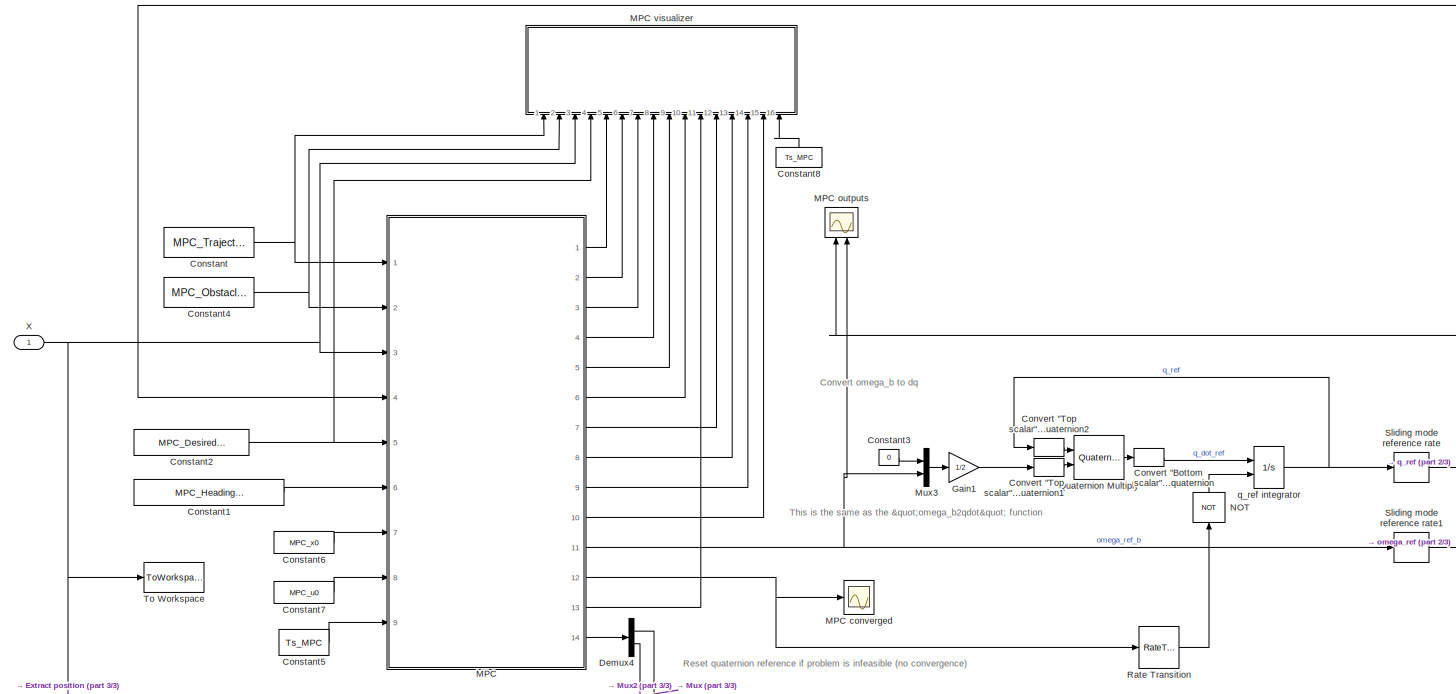
[diagram: root canvas - part 1/3, most of the canvas]
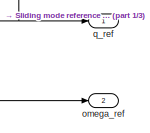
[diagram: root canvas - part 2/3, middle right region]
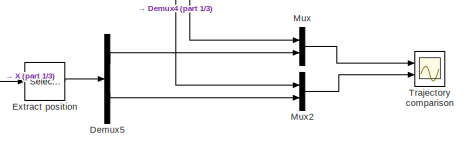
[diagram: root canvas - part 3/3, bottom center region]
MODEL slx_0b581701e710
KIND model
CONFIG AbsTol = auto
CONFIG EnableMultiTasking = off
CONFIG FixedStep = auto
CONFIG InitFcn = Parameters_Controllers % for controller sample rate\nParameters_Simulation\nConstants_Kugle\nConstants_nominal\nParameters_MPC;\n\nclose all; % close opened plots to prepare for automatic plots for MPC visualization\n\nPrepareMPCtrajectory;
CONFIG MaxStep = auto
CONFIG MinStep = auto
CONFIG PreLoadFcn = modelDir = fileparts(get_param(bdroot, 'FileName'));\naddpath(modelDir);\naddpath(fullfile(modelDir,'../../Parameters'));\naddpath(fullfile(modelDir,'../../Controllers/MPC'));\naddpath(fullfile(modelDir,'../../Controllers/MPC/functions'));\naddpath(fullfile(modelDir,'../../Controllers/MPC/functions/polynomial'));\naddpath(fullfile(modelDir,'../../Controllers/MPC/functions/trajectory'));\naddpath(fullfile...<+313ch>
CONFIG RelTol = 1e-3
CONFIG SampleTimeConstraint = Unconstrained
CONFIG Solver = VariableStepAuto
CONFIG SolverName = VariableStepAuto
CONFIG StartTime = 0.0
CONFIG StopTime = 10
BLOCK [Constant] Constant
  SampleTime = -1
  Value = MPC_Trajectory
BLOCK [Constant] Constant1
  SampleTime = -1
  Value = MPC_HeadingAngularVelocity
BLOCK [Constant] Constant2
  SampleTime = -1
  Value = MPC_DesiredVelocity
BLOCK [Constant] Constant3
  Value = 0
BLOCK [Constant] Constant4
  SampleTime = -1
  Value = MPC_Obstacles
BLOCK [Constant] Constant5
  SampleTime = -1
  Value = Ts_MPC
BLOCK [Constant] Constant6
  SampleTime = -1
  Value = MPC_x0
BLOCK [Constant] Constant7
  SampleTime = -1
  Value = MPC_u0
BLOCK [Constant] Constant8
  SampleTime = Ts_MPC
  Value = Ts_MPC
BLOCK [Selector] Convert "Bottom scalar" quaternion to "Top scalar" quaternion
  IndexOptions = Index vector (dialog)
  Indices = [4 1 2 3]
  InputPortWidth = 4
  OutputSizes = 1
  Ports = [1, 1]
BLOCK [Selector] Convert "Top scalar" quaternion to "Bottom scalar" quaternion1
  IndexOptions = Index vector (dialog)
  Indices = [2 3 4 1]
  InputPortWidth = 4
  OutputSizes = 1
  Ports = [1, 1]
BLOCK [Selector] Convert "Top scalar" quaternion to "Bottom scalar" quaternion2
  IndexOptions = Index vector (dialog)
  Indices = [2 3 4 1]
  InputPortWidth = 4
  OutputSizes = 1
  Ports = [1, 1]
BLOCK [Demux] Demux4
  DisplayOption = bar
  Outputs = 2
  Ports = [1, 2]
BLOCK [Demux] Demux5
  DisplayOption = bar
  Outputs = 2
  Ports = [1, 2]
BLOCK [Selector] Extract position
  IndexOptions = Index vector (dialog)
  Indices = [1 2]
  InputPortWidth = 12
  OutputSizes = 1
  Ports = [1, 1]
BLOCK [Gain] Gain1
  Gain = 1/2
  OutDataTypeStr = Inherit: Inherit via internal rule
  ParamDataTypeStr = Inherit: Inherit via internal rule
  SaturateOnIntegerOverflow = off
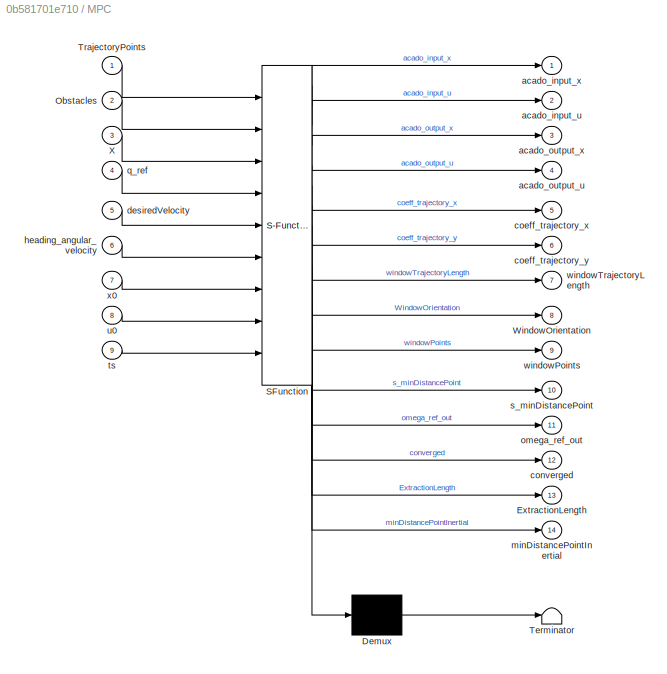
BLOCK [SubSystem] MPC
  ErrorFcn = Stateflow.Translate.translate
  MinAlgLoopOccurrences = on
  PermitHierarchicalResolution = ExplicitOnly
  Ports = [9, 14]
  RequestExecContextInheritance = off
  SFBlockType = MATLAB Function
  SystemSampleTime = Ts_MPC
  TreatAsAtomicUnit = on
BLOCK [Scope] MPC converged
  Floating = off
  NumInputPorts = 1
  Ports = [1]
  ScopeSpecificationString = Simulink.scopes.TimeScopeBlockCfg('CurrentConfiguration', extmgr.ConfigurationSet(extmgr.Configuration('Core','General UI',true),extmgr.Configuration('Core','Source UI',true),extmgr.Configuration('Sources','WiredSimulink',true,'DataLoggingVariableName','ScopeData1'),extmgr.Configuration('Visuals','Time Domain',true,'SerializedDisplays',{struct('MinYLimReal','-0.125','MaxYLimReal','1.125','YLabelRe...<+1491ch>
BLOCK [Scope] MPC outputs
  Floating = off
  NumInputPorts = 2
  Ports = [2]
  ScopeSpecificationString = Simulink.scopes.TimeScopeBlockCfg('CurrentConfiguration', extmgr.ConfigurationSet(extmgr.Configuration('Core','General UI',true),extmgr.Configuration('Core','Source UI',true),extmgr.Configuration('Sources','WiredSimulink',true,'DataLoggingVariableName','ScopeData2'),extmgr.Configuration('Visuals','Time Domain',true,'SerializedDisplays',{struct('MinYLimReal','-0.27423','MaxYLimReal','1.14158','YLab...<+2407ch>
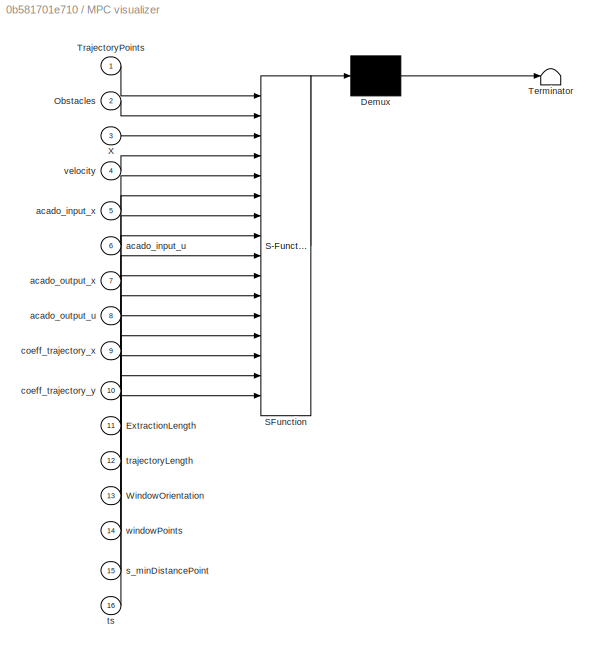
BLOCK [SubSystem] MPC visualizer
  ErrorFcn = Stateflow.Translate.translate
  MinAlgLoopOccurrences = on
  PermitHierarchicalResolution = ExplicitOnly
  Ports = [16]
  RequestExecContextInheritance = off
  SFBlockType = MATLAB Function
  SystemSampleTime = Ts_MPC
  TreatAsAtomicUnit = on
BLOCK [Demux] MPC visualizer/ Demux 
  Outputs = 1
  Ports = [1, 1]
BLOCK [S-Function] MPC visualizer/ SFunction 
  EnableBusSupport = on
  FunctionName = sf_sfun
  Parameters = MPC_ForceDrawNow,MPC_VisualizationLimits,N,WindowHeight,WindowOffset,WindowOrientationSelection,WindowWidth,pathApproximationOrder
  PortCounts = [16 1]
  Ports = [16, 1]
  SFcnIsStateOwnerBlock = off
  SFunctionDeploymentMode = off
  Tag = Stateflow S-Function MPC 40
BLOCK [Terminator] MPC visualizer/ Terminator 
BLOCK [Inport] MPC visualizer/ExtractionLength
  IconDisplay = Port number
  Port = 11
BLOCK [Inport] MPC visualizer/Obstacles
  IconDisplay = Port number
  Port = 2
BLOCK [Inport] MPC visualizer/TrajectoryPoints
  IconDisplay = Port number
BLOCK [Inport] MPC visualizer/WindowOrientation
  IconDisplay = Port number
  Port = 13
BLOCK [Inport] MPC visualizer/X
  IconDisplay = Port number
  Port = 3
BLOCK [Inport] MPC visualizer/acado_input_u
  IconDisplay = Port number
  Port = 6
BLOCK [Inport] MPC visualizer/acado_input_x
  IconDisplay = Port number
  Port = 5
BLOCK [Inport] MPC visualizer/acado_output_u
  IconDisplay = Port number
  Port = 8
BLOCK [Inport] MPC visualizer/acado_output_x
  IconDisplay = Port number
  Port = 7
BLOCK [Inport] MPC visualizer/coeff_trajectory_x
  IconDisplay = Port number
  Port = 9
BLOCK [Inport] MPC visualizer/coeff_trajectory_y
  IconDisplay = Port number
  Port = 10
BLOCK [Inport] MPC visualizer/s_minDistancePoint
  IconDisplay = Port number
  Port = 15
BLOCK [Inport] MPC visualizer/trajectoryLength
  IconDisplay = Port number
  Port = 12
BLOCK [Inport] MPC visualizer/ts
  IconDisplay = Port number
  Port = 16
BLOCK [Inport] MPC visualizer/velocity
  IconDisplay = Port number
  Port = 4
BLOCK [Inport] MPC visualizer/windowPoints
  IconDisplay = Port number
  Port = 14
BLOCK [Demux] MPC/ Demux 
  Outputs = 1
  Ports = [1, 1]
BLOCK [S-Function] MPC/ SFunction 
  EnableBusSupport = on
  FunctionName = sf_sfun
  Parameters = N,ProximityOffset,ProximityScale,WNmat,WindowOrientationSelection,Wmat,maxAngle,maxOmegaRef,maxVelocity,maxdOmegaRef,minVelocity,pathApproximationOrder
  PortCounts = [9 15]
  Ports = [9, 15]
  SFcnIsStateOwnerBlock = off
  SFunctionDeploymentMode = off
  Tag = Stateflow S-Function MPC 34
BLOCK [Terminator] MPC/ Terminator 
BLOCK [Outport] MPC/ExtractionLength
  IconDisplay = Port number
  Port = 13
BLOCK [Inport] MPC/Obstacles
  IconDisplay = Port number
  Port = 2
BLOCK [Inport] MPC/TrajectoryPoints
  IconDisplay = Port number
BLOCK [Outport] MPC/WindowOrientation
  IconDisplay = Port number
  Port = 8
BLOCK [Inport] MPC/X
  IconDisplay = Port number
  Port = 3
BLOCK [Outport] MPC/acado_input_u
  IconDisplay = Port number
  Port = 2
BLOCK [Outport] MPC/acado_input_x
  IconDisplay = Port number
BLOCK [Outport] MPC/acado_output_u
  IconDisplay = Port number
  Port = 4
BLOCK [Outport] MPC/acado_output_x
  IconDisplay = Port number
  Port = 3
BLOCK [Outport] MPC/coeff_trajectory_x
  IconDisplay = Port number
  Port = 5
BLOCK [Outport] MPC/coeff_trajectory_y
  IconDisplay = Port number
  Port = 6
BLOCK [Outport] MPC/converged
  IconDisplay = Port number
  Port = 12
BLOCK [Inport] MPC/desiredVelocity
  IconDisplay = Port number
  Port = 5
BLOCK [Inport] MPC/heading_angular_velocity
  IconDisplay = Port number
  Port = 6
BLOCK [Outport] MPC/minDistancePointInertial
  IconDisplay = Port number
  Port = 14
BLOCK [Outport] MPC/omega_ref_out
  IconDisplay = Port number
  Port = 11
BLOCK [Inport] MPC/q_ref
  IconDisplay = Port number
  Port = 4
BLOCK [Outport] MPC/s_minDistancePoint
  IconDisplay = Port number
  Port = 10
BLOCK [Inport] MPC/ts
  IconDisplay = Port number
  Port = 9
BLOCK [Inport] MPC/u0
  IconDisplay = Port number
  Port = 8
BLOCK [Outport] MPC/windowPoints
  IconDisplay = Port number
  Port = 9
BLOCK [Outport] MPC/windowTrajectoryLength
  IconDisplay = Port number
  Port = 7
BLOCK [Inport] MPC/x0
  IconDisplay = Port number
  Port = 7
BLOCK [Mux] Mux
  DisplayOption = bar
  Inputs = 2
  Ports = [2, 1]
BLOCK [Mux] Mux2
  DisplayOption = bar
  Inputs = 2
  Ports = [2, 1]
BLOCK [Mux] Mux3
  DisplayOption = bar
  Inputs = 2
  Ports = [2, 1]
BLOCK [Logic] NOT
  AllPortsSameDT = off
  IconShape = distinctive
  Operator = NOT
  OutDataTypeStr = boolean
  Ports = [1, 1]
BLOCK [Reference] Quaternion Multiply  REF=qlib/Quaternion  (lib defined in mdl_ab4d631060dc, slx_f623738634e3)
Multiply
  Ports = [2, 1]
  SourceBlock = qlib/Quaternion\nMultiply
  SourceType = Quaternion Multiply
BLOCK [RateTransition] Rate Transition
BLOCK [ZeroOrderHold] Sliding mode reference rate
  SampleTime = Ts
BLOCK [ZeroOrderHold] Sliding mode reference rate1
  SampleTime = Ts
BLOCK [ToWorkspace] To Workspace
  FixptAsFi = on
  MaxDataPoints = inf
  Ports = [1]
  SampleTime = -1
  Save2DSignal = 3-D array (concatenate along third dimension)
  SaveFormat = Timeseries
  VariableName = Stateslog
BLOCK [Scope] Trajectory comparison
  Floating = off
  NumInputPorts = 2
  Ports = [2]
  ScopeSpecificationString = Simulink.scopes.TimeScopeBlockCfg('CurrentConfiguration', extmgr.ConfigurationSet(extmgr.Configuration('Core','General UI',true),extmgr.Configuration('Core','Source UI',true),extmgr.Configuration('Sources','WiredSimulink',true),extmgr.Configuration('Visuals','Time Domain',true,'SerializedDisplays',{struct('MinYLimReal','-8.74887','MaxYLimReal','8.75','YLabelReal','','MinYLimMag','0.00000','MaxYLim...<+2085ch>
BLOCK [Inport] X
  IconDisplay = Port number
  PortDimensions = 12
BLOCK [Outport] omega_ref
  IconDisplay = Port number
  Port = 2
  PortDimensions = 3
BLOCK [Outport] q_ref
  IconDisplay = Port number
  PortDimensions = 4
BLOCK [Integrator] q_ref integrator
  ExternalReset = level hold
  InitialCondition = x_init(3:6)
  Ports = [2, 1]
ANNOTATION (root): This is the same as the "omega_b2qdot" function
ANNOTATION (root): Convert omega_b to dq
ANNOTATION (root): Reset quaternion reference if problem is infeasible (no convergence)
LINE Constant1:1 -> MPC:6
NET Constant2:1 -> MPC visualizer:4, MPC:5
LINE Constant3:1 -> Mux3:1
NET Constant4:1 -> MPC visualizer:2, MPC:2
LINE Constant5:1 -> MPC:9
LINE Constant6:1 -> MPC:7
LINE Constant7:1 -> MPC:8
LINE Constant8:1 -> MPC visualizer:16
NET Constant:1 -> MPC visualizer:1, MPC:1
LINE Convert "Bottom scalar" quaternion to "Top scalar" quaternion:1 -> q_ref integrator:1
LINE Convert "Top scalar" quaternion to "Bottom scalar" quaternion1:1 -> Quaternion Multiply:2
LINE Convert "Top scalar" quaternion to "Bottom scalar" quaternion2:1 -> Quaternion Multiply:1
LINE Demux4:1 -> Mux:1
LINE Demux4:2 -> Mux2:1
LINE Demux5:1 -> Mux:2
LINE Demux5:2 -> Mux2:2
LINE Extract position:1 -> Demux5:1
LINE Gain1:1 -> Convert "Top scalar" quaternion to "Bottom scalar" quaternion1:1
LINE MPC:1 -> MPC visualizer:5
LINE MPC:10 -> MPC visualizer:15
NET MPC:11 -> MPC outputs:2, Mux3:2, Sliding mode reference rate1:1
NET MPC:12 -> MPC converged:1, Rate Transition:1
LINE MPC:13 -> MPC visualizer:11
LINE MPC:14 -> Demux4:1
LINE MPC:2 -> MPC visualizer:6
LINE MPC:3 -> MPC visualizer:7
LINE MPC:4 -> MPC visualizer:8
LINE MPC:5 -> MPC visualizer:9
LINE MPC:6 -> MPC visualizer:10
LINE MPC:7 -> MPC visualizer:12
LINE MPC:8 -> MPC visualizer:13
LINE MPC:9 -> MPC visualizer:14
LINE Mux2:1 -> Trajectory comparison:2
LINE Mux3:1 -> Gain1:1
LINE Mux:1 -> Trajectory comparison:1
LINE NOT:1 -> q_ref integrator:2
LINE Quaternion Multiply:1 -> Convert "Bottom scalar" quaternion to "Top scalar" quaternion:1
LINE Rate Transition:1 -> NOT:1
LINE Sliding mode reference rate1:1 -> omega_ref:1
NET Sliding mode reference rate:1 -> MPC outputs:1, MPC:4, q_ref:1
NET X:1 -> Extract position:1, MPC visualizer:3, MPC:3, To Workspace:1
NET q_ref integrator:1 -> Convert "Top scalar" quaternion to "Bottom scalar" quaternion2:1, Sliding mode reference rate:1
note: NET lines group one-source signal fan-out (src -> all destinations, sorted); 1:1 wires keep LINE
CHART MPC states=1 transitions=1
  STATE_LABEL 'eML_blk_kernel()'
  STATE_LABEL 'SCRIPT:\nfunction [acado_input_x, acado_input_u, acado_output_x, acado_output_u, coeff_trajectory_x, coeff_trajectory_y, windowTrajectoryLength, WindowOrientation, windowPoints, s_minDistancePoint, omega_ref_out, converged, ExtractionLength, minDistancePointInertial] = MPC(TrajectoryPoints, Obstacles, X, q_ref, desiredVelocity, heading_angular_velocity, N, x0, u0, pathApproximationOrder, WindowOrie...<+3608ch>'
CHART MPC visualizer states=1 transitions=1
  STATE_LABEL 'eML_blk_kernel()'
  STATE_LABEL 'SCRIPT:\nfunction PlotMPC(TrajectoryPoints, Obstacles, X, velocity, acado_input_x, acado_input_u, acado_output_x, acado_output_u, coeff_trajectory_x, coeff_trajectory_y, ExtractionLength, trajectoryLength, WindowOrientation, windowPoints, s_minDistancePoint, N, ts, pathApproximationOrder, WindowOrientationSelection, WindowWidth, WindowHeight, WindowOffset, MPC_VisualizationLimits, MPC_ForceDrawNow)...<+3608ch>'
